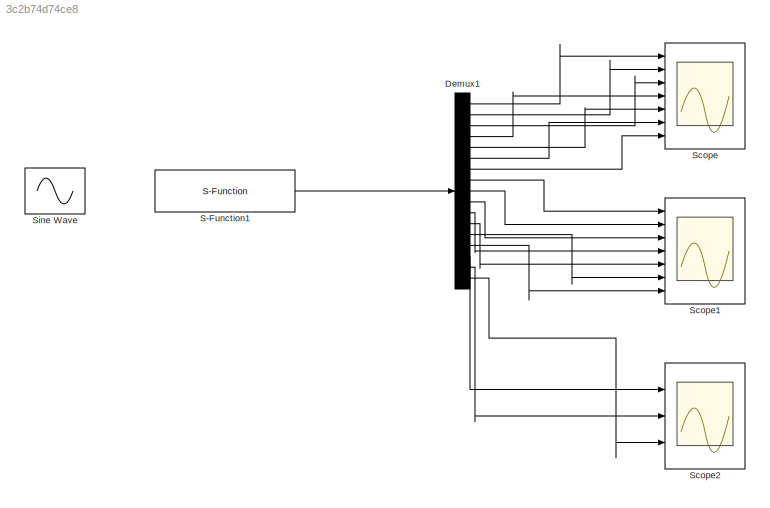
MODEL slx_3c2b74d74ce8
KIND model
BLOCK [Demux] Demux1
  DisplayOption = bar
  Outputs = 17
  Ports = [1, 17]
BLOCK [S-Function] S-Function1
  EnableBusSupport = off
  FunctionName = dyn_snn
  Ports = [1, 1]
BLOCK [Scope] Scope
  DataFormat = StructureWithTime
  Floating = off
  NumInputPorts = 7
  Ports = [7]
  SampleTime = 0
  ShowLegends = off
  TimeRange = 50
  YMax = 3~1~5~5~5~5~5
  YMin = -1.5~-1~-5~-5~-5~-5~-5
BLOCK [Scope] Scope1
  DataFormat = StructureWithTime
  Floating = off
  NumInputPorts = 7
  Ports = [7]
  SampleTime = 0
  SaveName = ScopeData1
  ShowLegends = off
  TimeRange = 50
  YMax = 3~1~5~5~5~5~5
  YMin = -1.5~-1~-5~-5~-5~-5~-5
BLOCK [Scope] Scope2
  DataFormat = StructureWithTime
  Floating = off
  NumInputPorts = 3
  Ports = [3]
  SampleTime = 0
  SaveName = ScopeData2
  ShowLegends = off
  TimeRange = 50
  YMax = 3~1~5
  YMin = -1.5~-1~-5
BLOCK [Sin] Sine Wave
  Ports = [0, 1]
  SampleTime = 0
LINE Demux1:1 -> Scope:1
LINE Demux1:10 -> Scope1:3
LINE Demux1:11 -> Scope1:4
LINE Demux1:12 -> Scope1:5
LINE Demux1:13 -> Scope1:6
LINE Demux1:14 -> Scope1:7
LINE Demux1:15 -> Scope2:1
LINE Demux1:16 -> Scope2:2
LINE Demux1:17 -> Scope2:3
LINE Demux1:2 -> Scope:2
LINE Demux1:3 -> Scope:3
LINE Demux1:4 -> Scope:4
LINE Demux1:5 -> Scope:5
LINE Demux1:6 -> Scope:6
LINE Demux1:7 -> Scope:7
LINE Demux1:8 -> Scope1:1
LINE Demux1:9 -> Scope1:2
LINE S-Function1:1 -> Demux1:1
